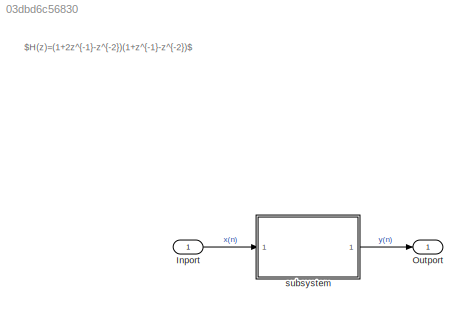
MODEL slx_03dbd6c56830
KIND model
CONFIG AbsTol = auto
CONFIG EnableMultiTasking = off
CONFIG FixedStep = auto
CONFIG MaxStep = auto
CONFIG MinStep = auto
CONFIG RelTol = 1e-3
CONFIG SampleTimeConstraint = Unconstrained
CONFIG Solver = VariableStepAuto
CONFIG SolverName = VariableStepAuto
CONFIG StartTime = 0.0
CONFIG StopTime = 10.0
BLOCK [Inport] Inport
  IconDisplay = Signal name
BLOCK [Outport] Outport
  IconDisplay = Signal name
BLOCK [ModelReference] subsystem
  ModelNameDialog = subsystem7
  ModelReferenceVersion = 1.3
  Ports = [1, 1]
ANNOTATION (root): $H(z)=(1+2z^{-1}-z^{-2})(1+z^{-1}-z^{-2})$
LINE Inport:1 -> subsystem:1
LINE subsystem:1 -> Outport:1
